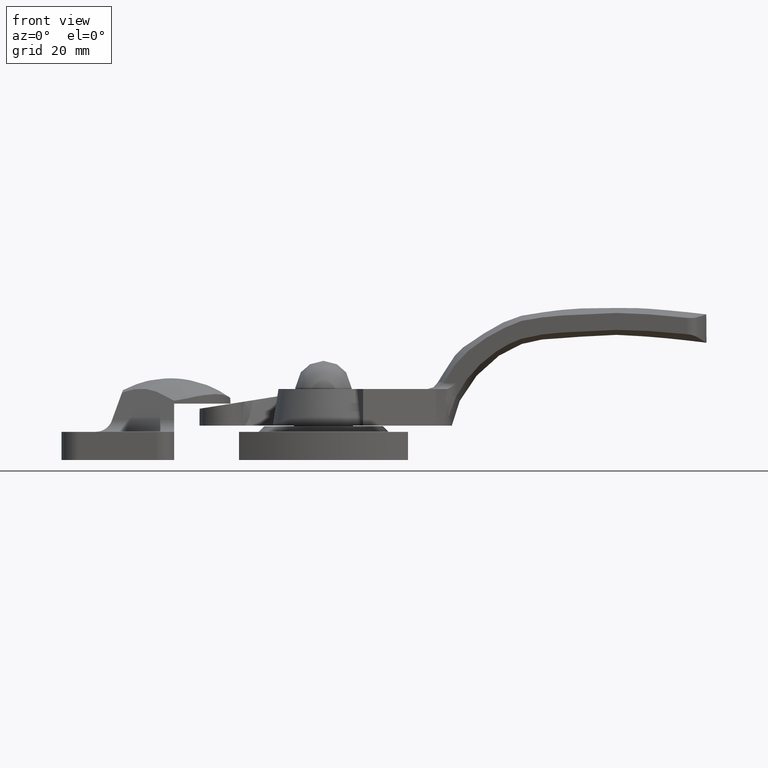
[diagram: clean part render]
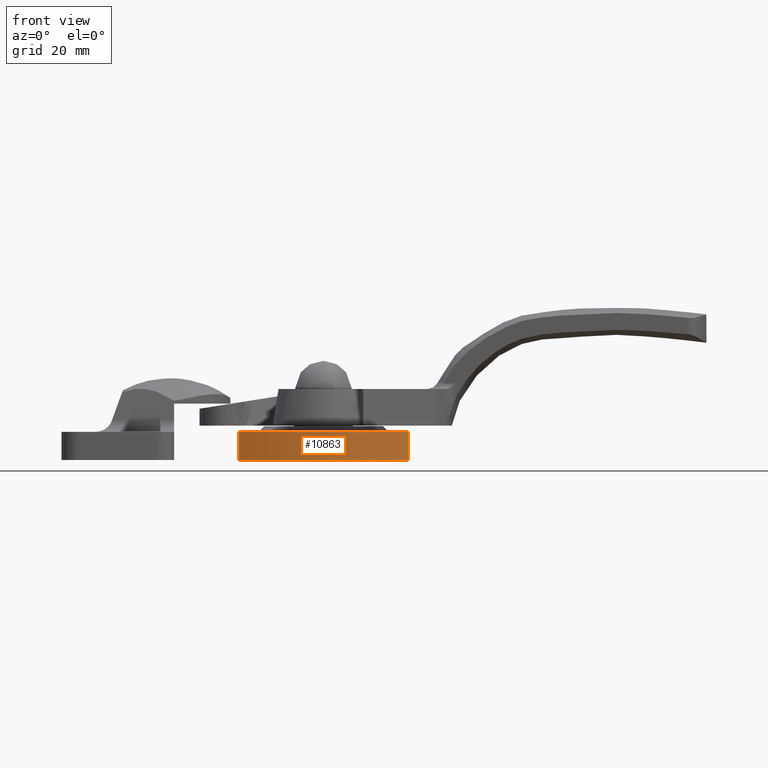
[diagram: same view with one face highlighted and labeled with its STEP entity id]
A machine part, front view. The second image highlights one B-rep face of the part: STEP entity #10863.
In plain terms, the highlighted face is a freeform B-spline surface patch.
Its self-contained STEP definition (entity closure, byte-faithful):
#10788=CARTESIAN_POINT('',(-15.0,-23.480762113533149,0.0));
#10789=VERTEX_POINT('',#10788);
#10795=CARTESIAN_POINT('',(-15.0,-23.480762113533149,5.0));
#10796=VERTEX_POINT('',#10795);
#10797=CARTESIAN_POINT('',(-15.0,-23.480762113533149,5.0));
#10798=CARTESIAN_POINT('',(-15.0,-23.480762113533149,0.0));
#10799=QUASI_UNIFORM_CURVE('',1,(#10797,#10798),.UNSPECIFIED.,.F.,.U.);
#10800=EDGE_CURVE('',#10796,#10789,#10799,.T.);
#10811=CARTESIAN_POINT('',(-15.674956941478509,-23.079204930622730,5.125000000000001));
#10812=CARTESIAN_POINT('',(-15.674956941478509,-23.079204930622730,-0.128125000000001));
#10813=CARTESIAN_POINT('',(0.308704265875593,-32.874005115851013,5.125000000000001));
#10814=CARTESIAN_POINT('',(0.308704265875593,-32.874005115851013,-0.128125000000001));
#10815=CARTESIAN_POINT('',(16.118988250404659,-22.801743374386600,5.125000000000001));
#10816=CARTESIAN_POINT('',(16.118988250404659,-22.801743374386600,-0.128125000000001));
#10824=(BOUNDED_SURFACE()B_SPLINE_SURFACE(1,2,((#10811,#10813,#10815),(#10812,#10814,#10816)),.UNSPECIFIED.,.F.,.F.,.U.)B_SPLINE_SURFACE_WITH_KNOTS((2,2),(3,3),(0.0,5.253125000000003),(0.0,34.409446291056938),.UNSPECIFIED.)GEOMETRIC_REPRESENTATION_ITEM()RATIONAL_B_SPLINE_SURFACE(((1.0,0.848048096156426,1.0),(1.0,0.848048096156426,1.0)))REPRESENTATION_ITEM('')SURFACE());
#10825=CARTESIAN_POINT('',(15.0,-23.480762113533199,0.0));
#10826=VERTEX_POINT('',#10825);
#10827=CARTESIAN_POINT('',(-15.000000000000011,-23.480762113533149,0.0));
#10828=CARTESIAN_POINT('',(-2.020438E-014,-32.141016151377542,0.0));
#10829=CARTESIAN_POINT('',(14.999999999999980,-23.480762113533171,0.0));
#10837=(BOUNDED_CURVE()B_SPLINE_CURVE(2,(#10827,#10828,#10829),.UNSPECIFIED.,.F.,.U.)CURVE()GEOMETRIC_REPRESENTATION_ITEM()QUASI_UNIFORM_CURVE()RATIONAL_B_SPLINE_CURVE((1.0,0.866025403784439,1.0))REPRESENTATION_ITEM(''));
#10838=EDGE_CURVE('',#10789,#10826,#10837,.T.);
#10839=ORIENTED_EDGE('',*,*,#10838,.T.);
#10840=CARTESIAN_POINT('',(15.0,-23.480762113533199,5.0));
#10841=VERTEX_POINT('',#10840);
#10842=CARTESIAN_POINT('',(15.0,-23.480762113533199,5.0));
#10843=CARTESIAN_POINT('',(15.0,-23.480762113533199,0.0));
#10844=QUASI_UNIFORM_CURVE('',1,(#10842,#10843),.UNSPECIFIED.,.F.,.U.);
#10845=EDGE_CURVE('',#10841,#10826,#10844,.T.);
#10846=ORIENTED_EDGE('',*,*,#10845,.F.);
#10847=CARTESIAN_POINT('',(-15.000000000000011,-23.480762113533149,5.0));
#10848=CARTESIAN_POINT('',(-2.020438E-014,-32.141016151377542,5.0));
#10849=CARTESIAN_POINT('',(14.999999999999980,-23.480762113533171,5.0));
#10857=(BOUNDED_CURVE()B_SPLINE_CURVE(2,(#10847,#10848,#10849),.UNSPECIFIED.,.F.,.U.)CURVE()GEOMETRIC_REPRESENTATION_ITEM()QUASI_UNIFORM_CURVE()RATIONAL_B_SPLINE_CURVE((1.0,0.866025403784439,1.0))REPRESENTATION_ITEM(''));
#10858=EDGE_CURVE('',#10796,#10841,#10857,.T.);
#10859=ORIENTED_EDGE('',*,*,#10858,.F.);
#10860=ORIENTED_EDGE('',*,*,#10800,.T.);
#10861=EDGE_LOOP('',(#10839,#10846,#10859,#10860));
#10862=FACE_OUTER_BOUND('',#10861,.T.);
#10863=ADVANCED_FACE('',(#10862),#10824,.T.);